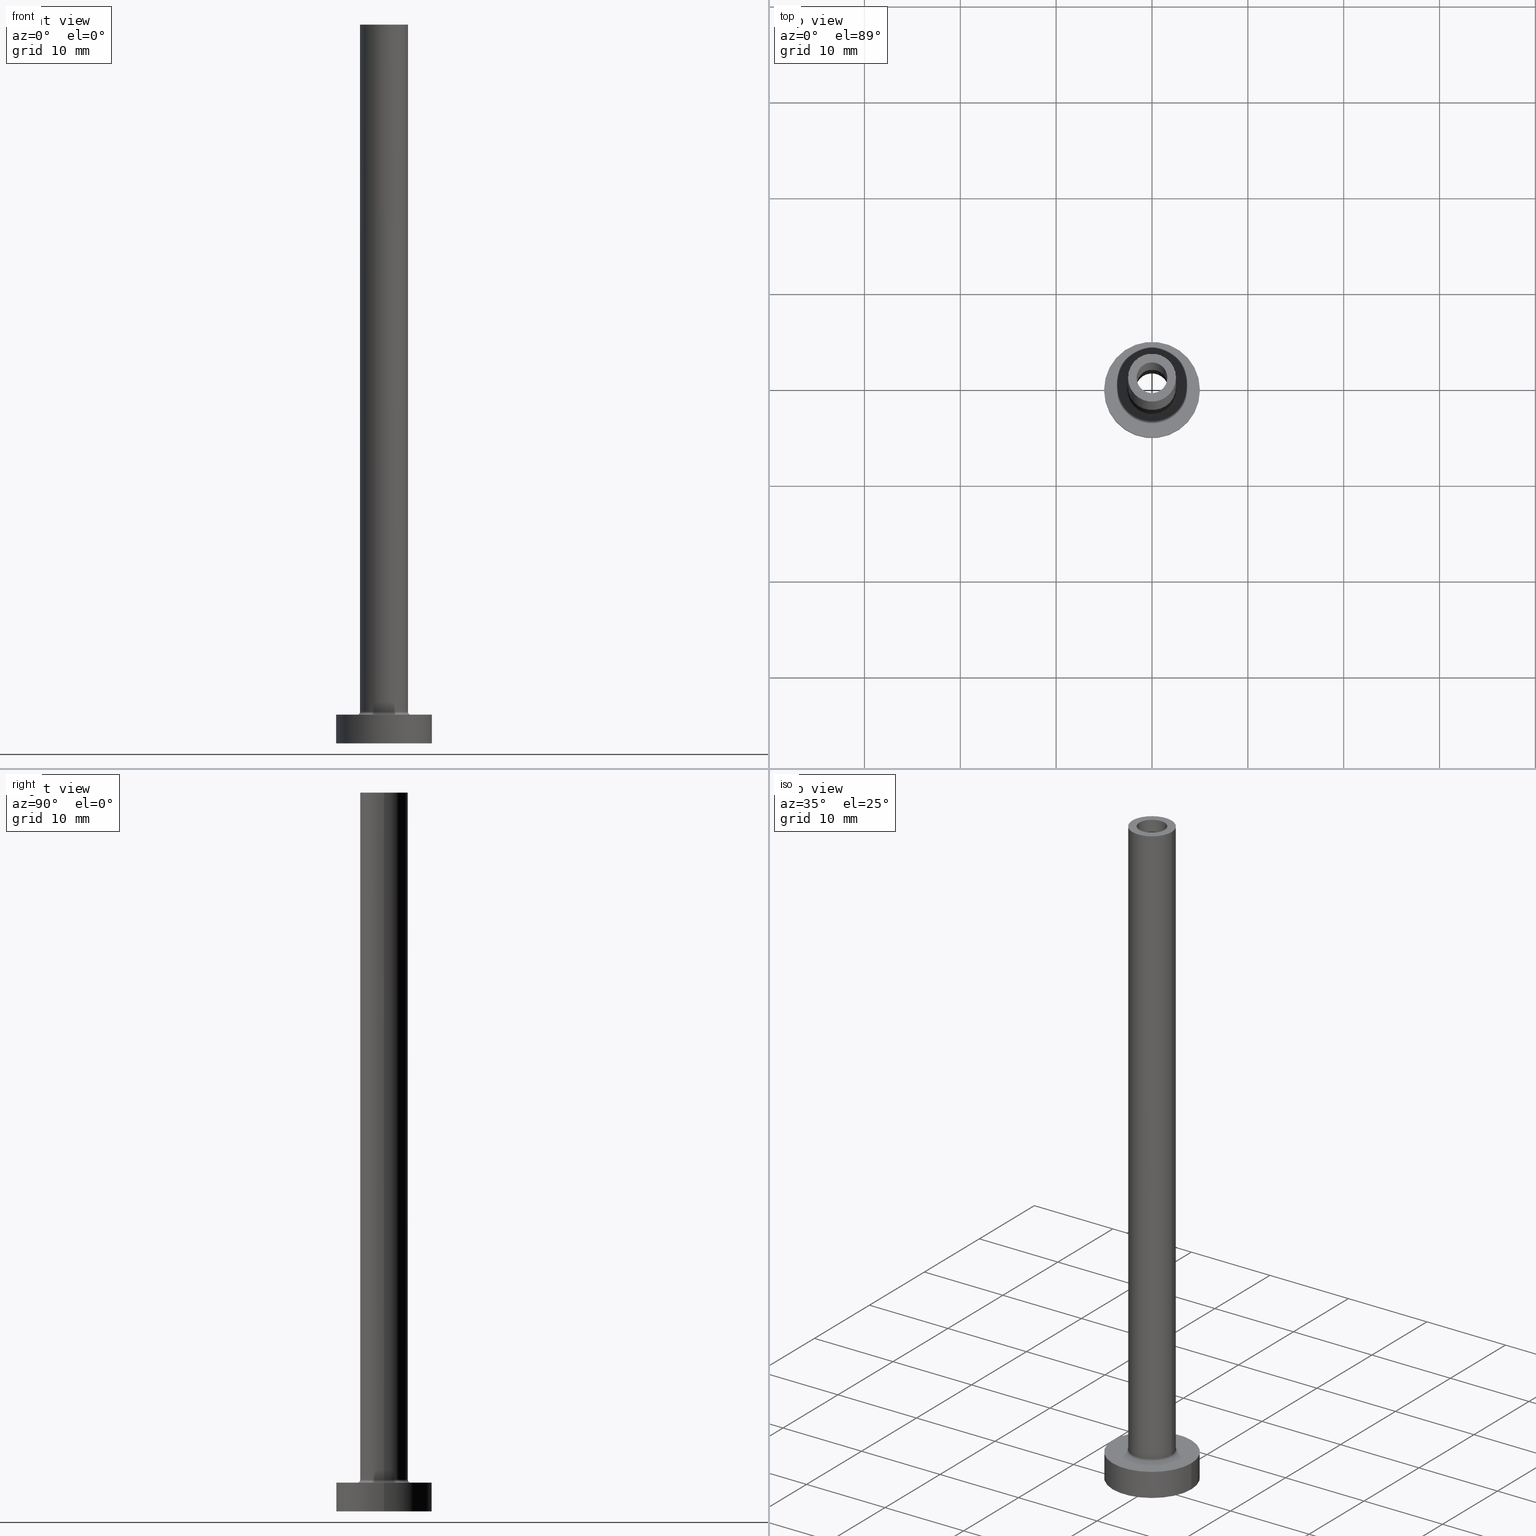
[diagram: canonical four-view strip — front | top / right | iso, engineering-drawing reading convention]
A machine part, canonical four-view strip (front | top / right | iso — engineering-drawing reading convention). The complete STEP part file that produces these views, byte-faithful:
ISO-10303-21;
HEADER;
FILE_DESCRIPTION (( 'STEP AP203' ),
    '1' );
FILE_NAME ('59d6.STEP',
    '2023-02-13T17:58:18',
    ( '' ),
    ( '' ),
    'SwSTEP 2.0',
    'SolidWorks 2019',
    '' );
FILE_SCHEMA (( 'CONFIG_CONTROL_DESIGN' ));
ENDSEC;

DATA;
#1 = DIRECTION ( 'NONE',  ( -0.000000000000000000, -0.000000000000000000, -1.000000000000000000 ) ) ;
#2 = ORIENTED_EDGE ( 'NONE', *, *, #396, .T. ) ;
#3 = AXIS2_PLACEMENT_3D ( 'NONE', #136, #129, #415 ) ;
#4 = CC_DESIGN_SECURITY_CLASSIFICATION ( #345, ( #99 ) ) ;
#5 = CARTESIAN_POINT ( 'NONE',  ( 0.000000000000000000, 0.000000000000000000, 3.000000000000000000 ) ) ;
#6 = AXIS2_PLACEMENT_3D ( 'NONE', #241, #185, #417 ) ;
#7 = EDGE_CURVE ( 'NONE', #86, #35, #331, .T. ) ;
#8 = CYLINDRICAL_SURFACE ( 'NONE', #449, 5.000000000000000000 ) ;
#9 = APPROVAL_ROLE ( '' ) ;
#10 = CIRCLE ( 'NONE', #191, 1.600000000000000089 ) ;
#11 = ORIENTED_EDGE ( 'NONE', *, *, #161, .F. ) ;
#12 = CIRCLE ( 'NONE', #30, 1.600000000000000089 ) ;
#13 = VERTEX_POINT ( 'NONE', #353 ) ;
#14 = AXIS2_PLACEMENT_3D ( 'NONE', #171, #165, #310 ) ;
#15 = ADVANCED_FACE ( 'NONE', ( #428 ), #389, .F. ) ;
#16 = CIRCLE ( 'NONE', #337, 5.000000000000000000 ) ;
#17 = APPROVAL_ROLE ( '' ) ;
#18 = FACE_BOUND ( 'NONE', #91, .T. ) ;
#19 = PERSON_AND_ORGANIZATION_ROLE ( 'creator' ) ;
#20 = EDGE_LOOP ( 'NONE', ( #11, #79, #107, #120 ) ) ;
#21 = FACE_OUTER_BOUND ( 'NONE', #216, .T. ) ;
#22 = COORDINATED_UNIVERSAL_TIME_OFFSET ( 1, 0, .AHEAD. ) ;
#23 = ADVANCED_FACE ( 'NONE', ( #247, #148 ), #238, .T. ) ;
#24 = AXIS2_PLACEMENT_3D ( 'NONE', #75, #318, #456 ) ;
#25 = ORIENTED_EDGE ( 'NONE', *, *, #298, .T. ) ;
#26 = CARTESIAN_POINT ( 'NONE',  ( 5.000000000000000000, 6.123233995736766282E-16, 3.000000000000000000 ) ) ;
#27 = FACE_OUTER_BOUND ( 'NONE', #33, .T. ) ;
#28 = CARTESIAN_POINT ( 'NONE',  ( 0.000000000000000000, 0.000000000000000000, 34.94974746830583001 ) ) ;
#29 = MECHANICAL_CONTEXT ( 'NONE', #339, 'mechanical' ) ;
#30 = AXIS2_PLACEMENT_3D ( 'NONE', #375, #262, #338 ) ;
#31 = VERTEX_POINT ( 'NONE', #43 ) ;
#32 = EDGE_CURVE ( 'NONE', #278, #142, #385, .T. ) ;
#33 = EDGE_LOOP ( 'NONE', ( #80, #41 ) ) ;
#34 = DATE_AND_TIME ( #361, #224 ) ;
#35 = VERTEX_POINT ( 'NONE', #140 ) ;
#36 = CARTESIAN_POINT ( 'NONE',  ( 1.750000000000000000, 2.143131898507867804E-16, 30.00000000000000000 ) ) ;
#37 = ORIENTED_EDGE ( 'NONE', *, *, #443, .F. ) ;
#38 = EDGE_CURVE ( 'NONE', #31, #358, #16, .T. ) ;
#39 = DIRECTION ( 'NONE',  ( 0.000000000000000000, 0.000000000000000000, -1.000000000000000000 ) ) ;
#40 = SECURITY_CLASSIFICATION_LEVEL ( 'unclassified' ) ;
#41 = ORIENTED_EDGE ( 'NONE', *, *, #319, .T. ) ;
#42 = TOROIDAL_SURFACE ( 'NONE', #131, 2.799999999999999822, 0.2999999999999999889 ) ;
#43 = CARTESIAN_POINT ( 'NONE',  ( 5.000000000000000000, 6.123233995736766282E-16, 3.000000000000000000 ) ) ;
#44 = COORDINATED_UNIVERSAL_TIME_OFFSET ( 1, 0, .AHEAD. ) ;
#45 = VERTEX_POINT ( 'NONE', #146 ) ;
#46 = PRODUCT_DEFINITION_SHAPE ( 'NONE', 'NONE',  #96 ) ;
#47 = CARTESIAN_POINT ( 'NONE',  ( 0.000000000000000000, 0.000000000000000000, 0.000000000000000000 ) ) ;
#48 = CIRCLE ( 'NONE', #322, 1.750000000000000000 ) ;
#49 = LINE ( 'NONE', #332, #300 ) ;
#50 = ORIENTED_EDGE ( 'NONE', *, *, #32, .T. ) ;
#51 = AXIS2_PLACEMENT_3D ( 'NONE', #369, #89, #250 ) ;
#52 = DIRECTION ( 'NONE',  ( 0.000000000000000000, 0.000000000000000000, 1.000000000000000000 ) ) ;
#53 = LINE ( 'NONE', #335, #404 ) ;
#54 = EDGE_CURVE ( 'NONE', #422, #311, #357, .T. ) ;
#55 = DATE_TIME_ROLE ( 'creation_date' ) ;
#56 = VECTOR ( 'NONE', #256, 1000.000000000000000 ) ;
#57 = CIRCLE ( 'NONE', #177, 2.799999999999999822 ) ;
#58 = DATE_AND_TIME ( #125, #291 ) ;
#59 = ORIENTED_EDGE ( 'NONE', *, *, #374, .T. ) ;
#60 = DIRECTION ( 'NONE',  ( -0.000000000000000000, -0.000000000000000000, -1.000000000000000000 ) ) ;
#61 = PERSON_AND_ORGANIZATION_ROLE ( 'design_owner' ) ;
#62 = ADVANCED_FACE ( 'NONE', ( #360 ), #110, .T. ) ;
#63 = DIRECTION ( 'NONE',  ( -1.000000000000000000, 0.000000000000000000, 0.000000000000000000 ) ) ;
#64 = CARTESIAN_POINT ( 'NONE',  ( 2.500000000000000000, 3.061616997868383141E-16, 3.299999999999997158 ) ) ;
#65 = DIRECTION ( 'NONE',  ( 1.000000000000000000, 0.000000000000000000, 0.000000000000000000 ) ) ;
#66 =( NAMED_UNIT ( * ) SI_UNIT ( $, .STERADIAN. ) SOLID_ANGLE_UNIT ( ) );
#67 = APPROVAL ( #372, 'NEUR�EN�' ) ;
#68 = CARTESIAN_POINT ( 'NONE',  ( -1.750000000000000000, 0.000000000000000000, 0.000000000000000000 ) ) ;
#69 = ORIENTED_EDGE ( 'NONE', *, *, #368, .F. ) ;
#70 = CIRCLE ( 'NONE', #344, 1.750000000000000000 ) ;
#71 = ORIENTED_EDGE ( 'NONE', *, *, #154, .F. ) ;
#72 = CC_DESIGN_APPROVAL ( #259, ( #345 ) ) ;
#73 = VERTEX_POINT ( 'NONE', #397 ) ;
#74 = ORIENTED_EDGE ( 'NONE', *, *, #83, .T. ) ;
#75 = CARTESIAN_POINT ( 'NONE',  ( 0.000000000000000000, 0.000000000000000000, 0.000000000000000000 ) ) ;
#76 = CC_DESIGN_PERSON_AND_ORGANIZATION_ASSIGNMENT ( #258, #126, ( #96 ) ) ;
#77 = DIRECTION ( 'NONE',  ( -1.000000000000000000, 0.000000000000000000, 0.000000000000000000 ) ) ;
#78 = CALENDAR_DATE ( 2023, 13, 2 ) ;
#79 = ORIENTED_EDGE ( 'NONE', *, *, #365, .T. ) ;
#80 = ORIENTED_EDGE ( 'NONE', *, *, #88, .T. ) ;
#81 = ORIENTED_EDGE ( 'NONE', *, *, #312, .F. ) ;
#82 = DIRECTION ( 'NONE',  ( 0.000000000000000000, 0.000000000000000000, 1.000000000000000000 ) ) ;
#83 = EDGE_CURVE ( 'NONE', #358, #31, #193, .T. ) ;
#84 = EDGE_LOOP ( 'NONE', ( #252, #2, #341, #363 ) ) ;
#85 = CARTESIAN_POINT ( 'NONE',  ( 0.000000000000000000, 0.000000000000000000, 3.299999999999997158 ) ) ;
#86 = VERTEX_POINT ( 'NONE', #364 ) ;
#87 = DIRECTION ( 'NONE',  ( 1.000000000000000000, 0.000000000000000000, 0.000000000000000000 ) ) ;
#88 = EDGE_CURVE ( 'NONE', #422, #45, #265, .T. ) ;
#89 = DIRECTION ( 'NONE',  ( 0.000000000000000000, 0.000000000000000000, 1.000000000000000000 ) ) ;
#90 = PERSON_AND_ORGANIZATION ( #287, #174 ) ;
#91 = EDGE_LOOP ( 'NONE', ( #455, #158 ) ) ;
#92 = CC_DESIGN_APPROVAL ( #67, ( #96 ) ) ;
#93 = DIRECTION ( 'NONE',  ( 1.000000000000000000, 0.000000000000000000, 0.000000000000000000 ) ) ;
#94 = TOROIDAL_SURFACE ( 'NONE', #326, 2.799999999999999822, 0.2999999999999999889 ) ;
#95 = DIRECTION ( 'NONE',  ( 0.000000000000000000, 0.000000000000000000, -1.000000000000000000 ) ) ;
#96 = PRODUCT_DEFINITION ( 'NEZN�M�', '', #99, #381 ) ;
#97 = CYLINDRICAL_SURFACE ( 'NONE', #199, 5.000000000000000000 ) ;
#98 = CARTESIAN_POINT ( 'NONE',  ( 2.799999999999999822, 0.000000000000000000, 2.999999999999998668 ) ) ;
#99 = PRODUCT_DEFINITION_FORMATION_WITH_SPECIFIED_SOURCE ( 'LIBOVOLN�', '', #281, .NOT_KNOWN. ) ;
#100 = CARTESIAN_POINT ( 'NONE',  ( 0.000000000000000000, 0.000000000000000000, 75.00000000000000000 ) ) ;
#101 = ORIENTED_EDGE ( 'NONE', *, *, #436, .T. ) ;
#102 = FACE_BOUND ( 'NONE', #190, .T. ) ;
#103 = CARTESIAN_POINT ( 'NONE',  ( 0.000000000000000000, 0.000000000000000000, 3.000000000000000000 ) ) ;
#104 = ORIENTED_EDGE ( 'NONE', *, *, #443, .T. ) ;
#105 = FACE_OUTER_BOUND ( 'NONE', #433, .T. ) ;
#106 = AXIS2_PLACEMENT_3D ( 'NONE', #373, #264, #196 ) ;
#107 = ORIENTED_EDGE ( 'NONE', *, *, #32, .F. ) ;
#108 = DIRECTION ( 'NONE',  ( 0.000000000000000000, 0.000000000000000000, -1.000000000000000000 ) ) ;
#109 = AXIS2_PLACEMENT_3D ( 'NONE', #85, #52, #370 ) ;
#110 = CYLINDRICAL_SURFACE ( 'NONE', #118, 2.500000000000000000 ) ;
#111 = DIRECTION ( 'NONE',  ( -1.000000000000000000, 0.000000000000000000, 0.000000000000000000 ) ) ;
#112 = DIRECTION ( 'NONE',  ( 1.000000000000000000, 0.000000000000000000, -0.000000000000000000 ) ) ;
#113 = ORIENTED_EDGE ( 'NONE', *, *, #421, .F. ) ;
#114 = DIRECTION ( 'NONE',  ( 0.000000000000000000, 0.000000000000000000, 1.000000000000000000 ) ) ;
#115 = CIRCLE ( 'NONE', #423, 1.750000000000000000 ) ;
#116 = LOCAL_TIME ( 18, 58, 18.00000000000000000, #164 ) ;
#117 = EDGE_CURVE ( 'NONE', #142, #278, #57, .T. ) ;
#118 = AXIS2_PLACEMENT_3D ( 'NONE', #217, #206, #273 ) ;
#119 = COORDINATED_UNIVERSAL_TIME_OFFSET ( 1, 0, .AHEAD. ) ;
#120 = ORIENTED_EDGE ( 'NONE', *, *, #334, .F. ) ;
#121 = CARTESIAN_POINT ( 'NONE',  ( -1.750000000000000000, 0.000000000000000000, 34.94974746830583001 ) ) ;
#122 = ADVANCED_FACE ( 'NONE', ( #105 ), #94, .F. ) ;
#123 = AXIS2_PLACEMENT_3D ( 'NONE', #379, #60, #309 ) ;
#124 = CLOSED_SHELL ( 'NONE', ( #15, #377, #135, #253, #272, #356, #23, #410, #62, #208, #122, #402, #226, #214 ) ) ;
#125 = CALENDAR_DATE ( 2023, 13, 2 ) ;
#126 = PERSON_AND_ORGANIZATION_ROLE ( 'creator' ) ;
#127 = EDGE_LOOP ( 'NONE', ( #74, #152 ) ) ;
#128 = VECTOR ( 'NONE', #313, 1000.000000000000000 ) ;
#129 = DIRECTION ( 'NONE',  ( 0.000000000000000000, 0.000000000000000000, 1.000000000000000000 ) ) ;
#130 = EDGE_CURVE ( 'NONE', #45, #290, #53, .T. ) ;
#131 = AXIS2_PLACEMENT_3D ( 'NONE', #403, #441, #87 ) ;
#132 = AXIS2_PLACEMENT_3D ( 'NONE', #386, #39, #77 ) ;
#133 = FACE_OUTER_BOUND ( 'NONE', #84, .T. ) ;
#134 = DIRECTION ( 'NONE',  ( -1.000000000000000000, 0.000000000000000000, 0.000000000000000000 ) ) ;
#135 = ADVANCED_FACE ( 'NONE', ( #188 ), #42, .F. ) ;
#136 = CARTESIAN_POINT ( 'NONE',  ( 0.000000000000000000, 0.000000000000000000, 30.00000000000000000 ) ) ;
#137 = AXIS2_PLACEMENT_3D ( 'NONE', #166, #223, #271 ) ;
#138 = EDGE_LOOP ( 'NONE', ( #113, #220, #187, #101 ) ) ;
#139 =( NAMED_UNIT ( * ) PLANE_ANGLE_UNIT ( ) SI_UNIT ( $, .RADIAN. ) );
#140 = CARTESIAN_POINT ( 'NONE',  ( -1.600000000000000089, 0.000000000000000000, 75.00000000000000000 ) ) ;
#141 = COORDINATED_UNIVERSAL_TIME_OFFSET ( 1, 0, .AHEAD. ) ;
#142 = VERTEX_POINT ( 'NONE', #222 ) ;
#143 = CARTESIAN_POINT ( 'NONE',  ( 0.000000000000000000, 0.000000000000000000, 0.000000000000000000 ) ) ;
#144 = EDGE_CURVE ( 'NONE', #358, #179, #49, .T. ) ;
#145 = UNCERTAINTY_MEASURE_WITH_UNIT (LENGTH_MEASURE( 1.000000000000000082E-05 ), #237, 'distance_accuracy_value', 'NONE');
#146 = CARTESIAN_POINT ( 'NONE',  ( 2.500000000000000000, 3.061616997868383141E-16, 75.00000000000000000 ) ) ;
#147 = ORIENTED_EDGE ( 'NONE', *, *, #117, .T. ) ;
#148 = FACE_OUTER_BOUND ( 'NONE', #127, .T. ) ;
#149 = VECTOR ( 'NONE', #212, 1000.000000000000000 ) ;
#150 = DIRECTION ( 'NONE',  ( -0.000000000000000000, -0.000000000000000000, -1.000000000000000000 ) ) ;
#151 = DIRECTION ( 'NONE',  ( 1.000000000000000000, 0.000000000000000000, 0.000000000000000000 ) ) ;
#152 = ORIENTED_EDGE ( 'NONE', *, *, #38, .T. ) ;
#153 = DIRECTION ( 'NONE',  ( -1.000000000000000000, 0.000000000000000000, 0.000000000000000000 ) ) ;
#154 = EDGE_CURVE ( 'NONE', #290, #311, #209, .T. ) ;
#155 = LINE ( 'NONE', #434, #56 ) ;
#156 = DIRECTION ( 'NONE',  ( 1.000000000000000000, 0.000000000000000000, 0.000000000000000000 ) ) ;
#157 = PERSON_AND_ORGANIZATION_ROLE ( 'classification_officer' ) ;
#158 = ORIENTED_EDGE ( 'NONE', *, *, #234, .T. ) ;
#159 = DIRECTION ( 'NONE',  ( 0.000000000000000000, 0.000000000000000000, 1.000000000000000000 ) ) ;
#160 = MANIFOLD_SOLID_BREP ( 'Odebrat vysunut�m4', #124 ) ;
#161 = EDGE_CURVE ( 'NONE', #311, #290, #384, .T. ) ;
#162 = ORIENTED_EDGE ( 'NONE', *, *, #194, .F. ) ;
#163 = AXIS2_PLACEMENT_3D ( 'NONE', #266, #95, #63 ) ;
#164 = COORDINATED_UNIVERSAL_TIME_OFFSET ( 1, 0, .AHEAD. ) ;
#165 = DIRECTION ( 'NONE',  ( 0.000000000000000000, 0.000000000000000000, 1.000000000000000000 ) ) ;
#166 = CARTESIAN_POINT ( 'NONE',  ( 0.000000000000000000, 0.000000000000000000, 0.000000000000000000 ) ) ;
#167 = EDGE_CURVE ( 'NONE', #73, #179, #426, .T. ) ;
#168 = FACE_OUTER_BOUND ( 'NONE', #349, .T. ) ;
#169 = AXIS2_PLACEMENT_3D ( 'NONE', #28, #108, #111 ) ;
#170 = VERTEX_POINT ( 'NONE', #297 ) ;
#171 = CARTESIAN_POINT ( 'NONE',  ( 0.000000000000000000, 0.000000000000000000, 75.00000000000000000 ) ) ;
#172 = EDGE_LOOP ( 'NONE', ( #37, #176 ) ) ;
#173 = CARTESIAN_POINT ( 'NONE',  ( 0.000000000000000000, 0.000000000000000000, 0.000000000000000000 ) ) ;
#174 = ORGANIZATION ( 'NEUR�EN�', 'NEUR�EN�', '' ) ;
#175 = PERSON_AND_ORGANIZATION ( #287, #174 ) ;
#176 = ORIENTED_EDGE ( 'NONE', *, *, #167, .F. ) ;
#177 = AXIS2_PLACEMENT_3D ( 'NONE', #103, #276, #420 ) ;
#178 = PERSON_AND_ORGANIZATION ( #287, #174 ) ;
#179 = VERTEX_POINT ( 'NONE', #327 ) ;
#180 = LINE ( 'NONE', #452, #205 ) ;
#181 = EDGE_CURVE ( 'NONE', #35, #86, #10, .T. ) ;
#182 = ORIENTED_EDGE ( 'NONE', *, *, #334, .T. ) ;
#183 = DIRECTION ( 'NONE',  ( 0.000000000000000000, 0.000000000000000000, 1.000000000000000000 ) ) ;
#184 = ORIENTED_EDGE ( 'NONE', *, *, #282, .F. ) ;
#185 = DIRECTION ( 'NONE',  ( 0.000000000000000000, 0.000000000000000000, 1.000000000000000000 ) ) ;
#186 = APPROVAL ( #260, 'NEUR�EN�' ) ;
#187 = ORIENTED_EDGE ( 'NONE', *, *, #368, .T. ) ;
#188 = FACE_OUTER_BOUND ( 'NONE', #20, .T. ) ;
#189 = CARTESIAN_POINT ( 'NONE',  ( 0.000000000000000000, 0.000000000000000000, 34.94974746830583001 ) ) ;
#190 = EDGE_LOOP ( 'NONE', ( #394, #162 ) ) ;
#191 = AXIS2_PLACEMENT_3D ( 'NONE', #438, #82, #435 ) ;
#192 = CARTESIAN_POINT ( 'NONE',  ( 0.000000000000000000, 0.000000000000000000, 30.00000000000000000 ) ) ;
#193 = CIRCLE ( 'NONE', #405, 5.000000000000000000 ) ;
#194 = EDGE_CURVE ( 'NONE', #13, #450, #359, .T. ) ;
#195 = ORIENTED_EDGE ( 'NONE', *, *, #54, .T. ) ;
#196 = DIRECTION ( 'NONE',  ( 0.000000000000000000, 0.000000000000000000, -1.000000000000000000 ) ) ;
#197 = DIRECTION ( 'NONE',  ( 1.000000000000000000, 0.000000000000000000, -0.000000000000000000 ) ) ;
#198 = EDGE_CURVE ( 'NONE', #413, #170, #70, .T. ) ;
#199 = AXIS2_PLACEMENT_3D ( 'NONE', #270, #409, #134 ) ;
#200 = CARTESIAN_POINT ( 'NONE',  ( 1.600000000000000089, 1.959434878635764737E-16, 75.00000000000000000 ) ) ;
#201 = LOCAL_TIME ( 18, 58, 18.00000000000000000, #44 ) ;
#202 = CARTESIAN_POINT ( 'NONE',  ( -2.500000000000000000, 0.000000000000000000, 3.299999999999997158 ) ) ;
#203 = ORIENTED_EDGE ( 'NONE', *, *, #181, .F. ) ;
#204 = ADVANCED_BREP_SHAPE_REPRESENTATION ( '59d6', ( #160, #137 ), #371 ) ;
#205 = VECTOR ( 'NONE', #383, 1000.000000000000000 ) ;
#206 = DIRECTION ( 'NONE',  ( -0.000000000000000000, -0.000000000000000000, -1.000000000000000000 ) ) ;
#207 = ORIENTED_EDGE ( 'NONE', *, *, #319, .F. ) ;
#208 = ADVANCED_FACE ( 'NONE', ( #307, #27 ), #446, .T. ) ;
#209 = CIRCLE ( 'NONE', #51, 2.500000000000000000 ) ;
#210 = CARTESIAN_POINT ( 'NONE',  ( 0.000000000000000000, 0.000000000000000000, 3.000000000000000000 ) ) ;
#211 = DIRECTION ( 'NONE',  ( 1.000000000000000000, 0.000000000000000000, 0.000000000000000000 ) ) ;
#212 = DIRECTION ( 'NONE',  ( -0.000000000000000000, -0.000000000000000000, -1.000000000000000000 ) ) ;
#213 = ORIENTED_EDGE ( 'NONE', *, *, #194, .T. ) ;
#214 = ADVANCED_FACE ( 'NONE', ( #303 ), #346, .F. ) ;
#215 = CARTESIAN_POINT ( 'NONE',  ( 0.000000000000000000, 0.000000000000000000, 3.000000000000000000 ) ) ;
#216 = EDGE_LOOP ( 'NONE', ( #207, #418, #362, #315 ) ) ;
#217 = CARTESIAN_POINT ( 'NONE',  ( 0.000000000000000000, 0.000000000000000000, 75.00000000000000000 ) ) ;
#218 = DIRECTION ( 'NONE',  ( -0.000000000000000000, -0.000000000000000000, -1.000000000000000000 ) ) ;
#219 = CYLINDRICAL_SURFACE ( 'NONE', #299, 1.750000000000000000 ) ;
#220 = ORIENTED_EDGE ( 'NONE', *, *, #198, .T. ) ;
#221 = CC_DESIGN_APPROVAL ( #186, ( #99 ) ) ;
#222 = CARTESIAN_POINT ( 'NONE',  ( -2.799999999999999822, 3.429011037612589276E-16, 2.999999999999998668 ) ) ;
#223 = DIRECTION ( 'NONE',  ( 0.000000000000000000, 0.000000000000000000, 1.000000000000000000 ) ) ;
#224 = LOCAL_TIME ( 18, 58, 18.00000000000000000, #119 ) ;
#225 = CARTESIAN_POINT ( 'NONE',  ( -1.600000000000000089, 0.000000000000000000, 30.00000000000000000 ) ) ;
#226 = ADVANCED_FACE ( 'NONE', ( #18, #447 ), #411, .F. ) ;
#227 = LINE ( 'NONE', #26, #128 ) ;
#228 = DIRECTION ( 'NONE',  ( 0.000000000000000000, 0.000000000000000000, 1.000000000000000000 ) ) ;
#229 = ORIENTED_EDGE ( 'NONE', *, *, #144, .T. ) ;
#230 = AXIS2_PLACEMENT_3D ( 'NONE', #352, #316, #458 ) ;
#231 = DIRECTION ( 'NONE',  ( 0.000000000000000000, 0.000000000000000000, -1.000000000000000000 ) ) ;
#232 = PLANE ( 'NONE',  #24 ) ;
#233 = DIRECTION ( 'NONE',  ( 0.000000000000000000, 0.000000000000000000, 1.000000000000000000 ) ) ;
#234 = EDGE_CURVE ( 'NONE', #416, #328, #12, .T. ) ;
#235 = CALENDAR_DATE ( 2023, 13, 2 ) ;
#236 = EDGE_LOOP ( 'NONE', ( #246, #25, #81, #391 ) ) ;
#237 =( LENGTH_UNIT ( ) NAMED_UNIT ( * ) SI_UNIT ( .MILLI., .METRE. ) );
#238 = PLANE ( 'NONE',  #440 ) ;
#239 = PERSON_AND_ORGANIZATION ( #287, #174 ) ;
#240 = ORIENTED_EDGE ( 'NONE', *, *, #83, .F. ) ;
#241 = CARTESIAN_POINT ( 'NONE',  ( 0.000000000000000000, 0.000000000000000000, 75.00000000000000000 ) ) ;
#242 = APPLICATION_CONTEXT ( 'configuration controlled 3d designs of mechanical parts and assemblies' ) ;
#243 = EDGE_LOOP ( 'NONE', ( #308, #429, #59, #388 ) ) ;
#244 = CC_DESIGN_PERSON_AND_ORGANIZATION_ASSIGNMENT ( #90, #19, ( #99 ) ) ;
#245 = CARTESIAN_POINT ( 'NONE',  ( -2.500000000000000000, 0.000000000000000000, 75.00000000000000000 ) ) ;
#246 = ORIENTED_EDGE ( 'NONE', *, *, #181, .T. ) ;
#247 = FACE_BOUND ( 'NONE', #304, .T. ) ;
#248 = CIRCLE ( 'NONE', #230, 0.2999999999999999334 ) ;
#249 = VECTOR ( 'NONE', #231, 1000.000000000000000 ) ;
#250 = DIRECTION ( 'NONE',  ( 1.000000000000000000, 0.000000000000000000, 0.000000000000000000 ) ) ;
#251 = APPROVAL_DATE_TIME ( #324, #259 ) ;
#252 = ORIENTED_EDGE ( 'NONE', *, *, #38, .F. ) ;
#253 = ADVANCED_FACE ( 'NONE', ( #21 ), #378, .T. ) ;
#254 = DIRECTION ( 'NONE',  ( 0.000000000000000000, 0.000000000000000000, 1.000000000000000000 ) ) ;
#255 = CIRCLE ( 'NONE', #439, 2.500000000000000000 ) ;
#256 = DIRECTION ( 'NONE',  ( 0.000000000000000000, 0.000000000000000000, -1.000000000000000000 ) ) ;
#257 = AXIS2_PLACEMENT_3D ( 'NONE', #289, #431, #459 ) ;
#258 = PERSON_AND_ORGANIZATION ( #287, #174 ) ;
#259 = APPROVAL ( #387, 'NEUR�EN�' ) ;
#260 = APPROVAL_STATUS ( 'not_yet_approved' ) ;
#261 = EDGE_LOOP ( 'NONE', ( #184, #293 ) ) ;
#262 = DIRECTION ( 'NONE',  ( 0.000000000000000000, 0.000000000000000000, 1.000000000000000000 ) ) ;
#263 = APPROVAL_ROLE ( '' ) ;
#264 = DIRECTION ( 'NONE',  ( 0.000000000000000000, -1.000000000000000000, 0.000000000000000000 ) ) ;
#265 = CIRCLE ( 'NONE', #6, 2.500000000000000000 ) ;
#266 = CARTESIAN_POINT ( 'NONE',  ( 0.000000000000000000, 0.000000000000000000, 75.00000000000000000 ) ) ;
#267 = CARTESIAN_POINT ( 'NONE',  ( 0.000000000000000000, 0.000000000000000000, 30.00000000000000000 ) ) ;
#268 = FACE_OUTER_BOUND ( 'NONE', #138, .T. ) ;
#269 = AXIS2_PLACEMENT_3D ( 'NONE', #173, #380, #211 ) ;
#270 = CARTESIAN_POINT ( 'NONE',  ( 0.000000000000000000, 0.000000000000000000, 3.000000000000000000 ) ) ;
#271 = DIRECTION ( 'NONE',  ( 1.000000000000000000, 0.000000000000000000, 0.000000000000000000 ) ) ;
#272 = ADVANCED_FACE ( 'NONE', ( #133 ), #97, .T. ) ;
#273 = DIRECTION ( 'NONE',  ( -1.000000000000000000, 0.000000000000000000, 0.000000000000000000 ) ) ;
#274 = APPROVAL_DATE_TIME ( #58, #67 ) ;
#275 = ORIENTED_EDGE ( 'NONE', *, *, #130, .F. ) ;
#276 = DIRECTION ( 'NONE',  ( -0.000000000000000000, -0.000000000000000000, -1.000000000000000000 ) ) ;
#277 = PERSON_AND_ORGANIZATION ( #287, #174 ) ;
#278 = VERTEX_POINT ( 'NONE', #98 ) ;
#279 = DIRECTION ( 'NONE',  ( 1.000000000000000000, 0.000000000000000000, 0.000000000000000000 ) ) ;
#280 = AXIS2_PLACEMENT_3D ( 'NONE', #47, #330, #305 ) ;
#281 = PRODUCT ( '59d6', '59d6', '', ( #29 ) ) ;
#282 = EDGE_CURVE ( 'NONE', #170, #413, #48, .T. ) ;
#283 = AXIS2_PLACEMENT_3D ( 'NONE', #210, #1, #284 ) ;
#284 = DIRECTION ( 'NONE',  ( 1.000000000000000000, 0.000000000000000000, 0.000000000000000000 ) ) ;
#285 = PERSON_AND_ORGANIZATION_ROLE ( 'design_supplier' ) ;
#286 = EDGE_LOOP ( 'NONE', ( #203, #427 ) ) ;
#287 = PERSON ( 'NEUR�EN�', 'NEUR�EN�', 'NEUR�EN�', ('NEUR�EN�'), ('NEUR�EN�'), ('NEUR�EN�') ) ;
#288 = CARTESIAN_POINT ( 'NONE',  ( -5.000000000000000000, 0.000000000000000000, 3.000000000000000000 ) ) ;
#289 = CARTESIAN_POINT ( 'NONE',  ( 0.000000000000000000, 0.000000000000000000, 75.00000000000000000 ) ) ;
#290 = VERTEX_POINT ( 'NONE', #64 ) ;
#291 = LOCAL_TIME ( 18, 58, 18.00000000000000000, #141 ) ;
#292 = APPROVAL_PERSON_ORGANIZATION ( #239, #259, #9 ) ;
#293 = ORIENTED_EDGE ( 'NONE', *, *, #198, .F. ) ;
#294 = CC_DESIGN_DATE_AND_TIME_ASSIGNMENT ( #34, #390, ( #345 ) ) ;
#295 = DIRECTION ( 'NONE',  ( 1.000000000000000000, 0.000000000000000000, 0.000000000000000000 ) ) ;
#296 = AXIS2_PLACEMENT_3D ( 'NONE', #333, #159, #295 ) ;
#297 = CARTESIAN_POINT ( 'NONE',  ( -1.750000000000000000, 0.000000000000000000, 30.00000000000000000 ) ) ;
#298 = EDGE_CURVE ( 'NONE', #86, #416, #347, .T. ) ;
#299 = AXIS2_PLACEMENT_3D ( 'NONE', #189, #406, #395 ) ;
#300 = VECTOR ( 'NONE', #408, 1000.000000000000000 ) ;
#301 = LINE ( 'NONE', #121, #367 ) ;
#302 = CALENDAR_DATE ( 2023, 13, 2 ) ;
#303 = FACE_OUTER_BOUND ( 'NONE', #243, .T. ) ;
#304 = EDGE_LOOP ( 'NONE', ( #50, #147 ) ) ;
#305 = DIRECTION ( 'NONE',  ( 1.000000000000000000, 0.000000000000000000, 0.000000000000000000 ) ) ;
#306 = CIRCLE ( 'NONE', #3, 1.600000000000000089 ) ;
#307 = FACE_BOUND ( 'NONE', #286, .T. ) ;
#308 = ORIENTED_EDGE ( 'NONE', *, *, #298, .F. ) ;
#309 = DIRECTION ( 'NONE',  ( -1.000000000000000000, 0.000000000000000000, 0.000000000000000000 ) ) ;
#310 = DIRECTION ( 'NONE',  ( 1.000000000000000000, 0.000000000000000000, -0.000000000000000000 ) ) ;
#311 = VERTEX_POINT ( 'NONE', #202 ) ;
#312 = EDGE_CURVE ( 'NONE', #328, #416, #306, .T. ) ;
#313 = DIRECTION ( 'NONE',  ( -0.000000000000000000, -0.000000000000000000, -1.000000000000000000 ) ) ;
#314 = APPLICATION_PROTOCOL_DEFINITION ( 'international standard', 'config_control_design', 1994, #242 ) ;
#315 = ORIENTED_EDGE ( 'NONE', *, *, #54, .F. ) ;
#316 = DIRECTION ( 'NONE',  ( 1.224646799147353207E-16, 1.000000000000000000, -0.000000000000000000 ) ) ;
#317 = ORIENTED_EDGE ( 'NONE', *, *, #365, .F. ) ;
#318 = DIRECTION ( 'NONE',  ( 0.000000000000000000, 0.000000000000000000, 1.000000000000000000 ) ) ;
#319 = EDGE_CURVE ( 'NONE', #45, #422, #255, .T. ) ;
#320 = ORIENTED_EDGE ( 'NONE', *, *, #282, .T. ) ;
#321 = FACE_OUTER_BOUND ( 'NONE', #172, .T. ) ;
#322 = AXIS2_PLACEMENT_3D ( 'NONE', #448, #228, #65 ) ;
#323 = DIRECTION ( 'NONE',  ( 1.000000000000000000, 0.000000000000000000, 0.000000000000000000 ) ) ;
#324 = DATE_AND_TIME ( #78, #201 ) ;
#325 = EDGE_LOOP ( 'NONE', ( #320, #382, #213, #69 ) ) ;
#326 = AXIS2_PLACEMENT_3D ( 'NONE', #366, #254, #156 ) ;
#327 = CARTESIAN_POINT ( 'NONE',  ( -5.000000000000000000, 0.000000000000000000, 0.000000000000000000 ) ) ;
#328 = VERTEX_POINT ( 'NONE', #225 ) ;
#329 = CC_DESIGN_PERSON_AND_ORGANIZATION_ASSIGNMENT ( #178, #285, ( #99 ) ) ;
#330 = DIRECTION ( 'NONE',  ( -0.000000000000000000, -0.000000000000000000, -1.000000000000000000 ) ) ;
#331 = CIRCLE ( 'NONE', #257, 1.600000000000000089 ) ;
#332 = CARTESIAN_POINT ( 'NONE',  ( -5.000000000000000000, 0.000000000000000000, 3.000000000000000000 ) ) ;
#333 = CARTESIAN_POINT ( 'NONE',  ( 0.000000000000000000, 0.000000000000000000, 0.000000000000000000 ) ) ;
#334 = EDGE_CURVE ( 'NONE', #290, #278, #451, .T. ) ;
#335 = CARTESIAN_POINT ( 'NONE',  ( 2.500000000000000000, 3.061616997868383141E-16, 75.00000000000000000 ) ) ;
#336 = PERSON_AND_ORGANIZATION ( #287, #174 ) ;
#337 = AXIS2_PLACEMENT_3D ( 'NONE', #393, #114, #151 ) ;
#338 = DIRECTION ( 'NONE',  ( 1.000000000000000000, 0.000000000000000000, 0.000000000000000000 ) ) ;
#339 = APPLICATION_CONTEXT ( 'configuration controlled 3d designs of mechanical parts and assemblies' ) ;
#340 = DATE_AND_TIME ( #302, #116 ) ;
#341 = ORIENTED_EDGE ( 'NONE', *, *, #167, .T. ) ;
#342 = DIRECTION ( 'NONE',  ( 1.000000000000000000, 0.000000000000000000, 0.000000000000000000 ) ) ;
#343 = CC_DESIGN_PERSON_AND_ORGANIZATION_ASSIGNMENT ( #277, #157, ( #345 ) ) ;
#344 = AXIS2_PLACEMENT_3D ( 'NONE', #192, #444, #342 ) ;
#345 = SECURITY_CLASSIFICATION ( '', '', #40 ) ;
#346 = CYLINDRICAL_SURFACE ( 'NONE', #163, 1.600000000000000089 ) ;
#347 = LINE ( 'NONE', #200, #249 ) ;
#348 = CC_DESIGN_DATE_AND_TIME_ASSIGNMENT ( #407, #55, ( #96 ) ) ;
#349 = EDGE_LOOP ( 'NONE', ( #399, #240, #229, #104 ) ) ;
#350 = CARTESIAN_POINT ( 'NONE',  ( -2.500000000000000000, 0.000000000000000000, 75.00000000000000000 ) ) ;
#351 = LOCAL_TIME ( 18, 58, 18.00000000000000000, #22 ) ;
#352 = CARTESIAN_POINT ( 'NONE',  ( -2.799999999999999822, 3.429011037612588783E-16, 3.299999999999997158 ) ) ;
#353 = CARTESIAN_POINT ( 'NONE',  ( 1.750000000000000000, 2.143131898507867804E-16, 0.000000000000000000 ) ) ;
#354 = EDGE_LOOP ( 'NONE', ( #275, #401, #195, #445 ) ) ;
#355 = APPLICATION_PROTOCOL_DEFINITION ( 'international standard', 'config_control_design', 1994, #339 ) ;
#356 = ADVANCED_FACE ( 'NONE', ( #168 ), #8, .T. ) ;
#357 = LINE ( 'NONE', #245, #149 ) ;
#358 = VERTEX_POINT ( 'NONE', #288 ) ;
#359 = CIRCLE ( 'NONE', #280, 1.750000000000000000 ) ;
#360 = FACE_OUTER_BOUND ( 'NONE', #354, .T. ) ;
#361 = CALENDAR_DATE ( 2023, 13, 2 ) ;
#362 = ORIENTED_EDGE ( 'NONE', *, *, #154, .T. ) ;
#363 = ORIENTED_EDGE ( 'NONE', *, *, #144, .F. ) ;
#364 = CARTESIAN_POINT ( 'NONE',  ( 1.600000000000000089, 1.959434878635764737E-16, 75.00000000000000000 ) ) ;
#365 = EDGE_CURVE ( 'NONE', #311, #142, #248, .T. ) ;
#366 = CARTESIAN_POINT ( 'NONE',  ( 0.000000000000000000, 0.000000000000000000, 3.299999999999997158 ) ) ;
#367 = VECTOR ( 'NONE', #437, 1000.000000000000000 ) ;
#368 = EDGE_CURVE ( 'NONE', #170, #450, #301, .T. ) ;
#369 = CARTESIAN_POINT ( 'NONE',  ( 0.000000000000000000, 0.000000000000000000, 3.299999999999997158 ) ) ;
#370 = DIRECTION ( 'NONE',  ( 1.000000000000000000, 0.000000000000000000, 0.000000000000000000 ) ) ;
#371 =( GEOMETRIC_REPRESENTATION_CONTEXT ( 3 ) GLOBAL_UNCERTAINTY_ASSIGNED_CONTEXT ( ( #145 ) ) GLOBAL_UNIT_ASSIGNED_CONTEXT ( ( #237, #139, #66 ) ) REPRESENTATION_CONTEXT ( 'NONE', 'WORKASPACE' ) );
#372 = APPROVAL_STATUS ( 'not_yet_approved' ) ;
#373 = CARTESIAN_POINT ( 'NONE',  ( 2.799999999999999822, 0.000000000000000000, 3.299999999999997158 ) ) ;
#374 = EDGE_CURVE ( 'NONE', #35, #328, #155, .T. ) ;
#375 = CARTESIAN_POINT ( 'NONE',  ( 0.000000000000000000, 0.000000000000000000, 30.00000000000000000 ) ) ;
#376 = AXIS2_PLACEMENT_3D ( 'NONE', #267, #412, #197 ) ;
#377 = ADVANCED_FACE ( 'NONE', ( #400 ), #219, .F. ) ;
#378 = CYLINDRICAL_SURFACE ( 'NONE', #123, 2.500000000000000000 ) ;
#379 = CARTESIAN_POINT ( 'NONE',  ( 0.000000000000000000, 0.000000000000000000, 75.00000000000000000 ) ) ;
#380 = DIRECTION ( 'NONE',  ( 0.000000000000000000, 0.000000000000000000, 1.000000000000000000 ) ) ;
#381 = DESIGN_CONTEXT ( 'detailed design', #242, 'design' ) ;
#382 = ORIENTED_EDGE ( 'NONE', *, *, #421, .T. ) ;
#383 = DIRECTION ( 'NONE',  ( 0.000000000000000000, 0.000000000000000000, -1.000000000000000000 ) ) ;
#384 = CIRCLE ( 'NONE', #109, 2.500000000000000000 ) ;
#385 = CIRCLE ( 'NONE', #283, 2.799999999999999822 ) ;
#386 = CARTESIAN_POINT ( 'NONE',  ( 0.000000000000000000, 0.000000000000000000, 75.00000000000000000 ) ) ;
#387 = APPROVAL_STATUS ( 'not_yet_approved' ) ;
#388 = ORIENTED_EDGE ( 'NONE', *, *, #234, .F. ) ;
#389 = CYLINDRICAL_SURFACE ( 'NONE', #132, 1.600000000000000089 ) ;
#390 = DATE_TIME_ROLE ( 'classification_date' ) ;
#391 = ORIENTED_EDGE ( 'NONE', *, *, #374, .F. ) ;
#392 = CARTESIAN_POINT ( 'NONE',  ( 1.600000000000000089, 1.959434878635764737E-16, 30.00000000000000000 ) ) ;
#393 = CARTESIAN_POINT ( 'NONE',  ( 0.000000000000000000, 0.000000000000000000, 3.000000000000000000 ) ) ;
#394 = ORIENTED_EDGE ( 'NONE', *, *, #436, .F. ) ;
#395 = DIRECTION ( 'NONE',  ( -1.000000000000000000, 0.000000000000000000, 0.000000000000000000 ) ) ;
#396 = EDGE_CURVE ( 'NONE', #31, #73, #227, .T. ) ;
#397 = CARTESIAN_POINT ( 'NONE',  ( 5.000000000000000000, 6.123233995736766282E-16, 0.000000000000000000 ) ) ;
#398 = SHAPE_DEFINITION_REPRESENTATION ( #46, #204 ) ;
#399 = ORIENTED_EDGE ( 'NONE', *, *, #396, .F. ) ;
#400 = FACE_OUTER_BOUND ( 'NONE', #325, .T. ) ;
#401 = ORIENTED_EDGE ( 'NONE', *, *, #88, .F. ) ;
#402 = ADVANCED_FACE ( 'NONE', ( #268 ), #419, .F. ) ;
#403 = CARTESIAN_POINT ( 'NONE',  ( 0.000000000000000000, 0.000000000000000000, 3.299999999999997158 ) ) ;
#404 = VECTOR ( 'NONE', #218, 1000.000000000000000 ) ;
#405 = AXIS2_PLACEMENT_3D ( 'NONE', #425, #183, #323 ) ;
#406 = DIRECTION ( 'NONE',  ( 0.000000000000000000, 0.000000000000000000, -1.000000000000000000 ) ) ;
#407 = DATE_AND_TIME ( #235, #351 ) ;
#408 = DIRECTION ( 'NONE',  ( -0.000000000000000000, -0.000000000000000000, -1.000000000000000000 ) ) ;
#409 = DIRECTION ( 'NONE',  ( -0.000000000000000000, -0.000000000000000000, -1.000000000000000000 ) ) ;
#410 = ADVANCED_FACE ( 'NONE', ( #102, #321 ), #232, .F. ) ;
#411 = PLANE ( 'NONE',  #376 ) ;
#412 = DIRECTION ( 'NONE',  ( 0.000000000000000000, 0.000000000000000000, 1.000000000000000000 ) ) ;
#413 = VERTEX_POINT ( 'NONE', #36 ) ;
#414 = CIRCLE ( 'NONE', #269, 5.000000000000000000 ) ;
#415 = DIRECTION ( 'NONE',  ( 1.000000000000000000, 0.000000000000000000, 0.000000000000000000 ) ) ;
#416 = VERTEX_POINT ( 'NONE', #392 ) ;
#417 = DIRECTION ( 'NONE',  ( 1.000000000000000000, 0.000000000000000000, 0.000000000000000000 ) ) ;
#418 = ORIENTED_EDGE ( 'NONE', *, *, #130, .T. ) ;
#419 = CYLINDRICAL_SURFACE ( 'NONE', #169, 1.750000000000000000 ) ;
#420 = DIRECTION ( 'NONE',  ( 1.000000000000000000, 0.000000000000000000, 0.000000000000000000 ) ) ;
#421 = EDGE_CURVE ( 'NONE', #413, #13, #180, .T. ) ;
#422 = VERTEX_POINT ( 'NONE', #350 ) ;
#423 = AXIS2_PLACEMENT_3D ( 'NONE', #143, #461, #279 ) ;
#424 = APPROVAL_PERSON_ORGANIZATION ( #336, #186, #17 ) ;
#425 = CARTESIAN_POINT ( 'NONE',  ( 0.000000000000000000, 0.000000000000000000, 3.000000000000000000 ) ) ;
#426 = CIRCLE ( 'NONE', #296, 5.000000000000000000 ) ;
#427 = ORIENTED_EDGE ( 'NONE', *, *, #7, .F. ) ;
#428 = FACE_OUTER_BOUND ( 'NONE', #236, .T. ) ;
#429 = ORIENTED_EDGE ( 'NONE', *, *, #7, .T. ) ;
#430 = CC_DESIGN_PERSON_AND_ORGANIZATION_ASSIGNMENT ( #175, #61, ( #281 ) ) ;
#431 = DIRECTION ( 'NONE',  ( 0.000000000000000000, 0.000000000000000000, 1.000000000000000000 ) ) ;
#432 = APPROVAL_PERSON_ORGANIZATION ( #454, #67, #263 ) ;
#433 = EDGE_LOOP ( 'NONE', ( #317, #71, #182, #460 ) ) ;
#434 = CARTESIAN_POINT ( 'NONE',  ( -1.600000000000000089, 0.000000000000000000, 75.00000000000000000 ) ) ;
#435 = DIRECTION ( 'NONE',  ( 1.000000000000000000, 0.000000000000000000, 0.000000000000000000 ) ) ;
#436 = EDGE_CURVE ( 'NONE', #450, #13, #115, .T. ) ;
#437 = DIRECTION ( 'NONE',  ( 0.000000000000000000, 0.000000000000000000, -1.000000000000000000 ) ) ;
#438 = CARTESIAN_POINT ( 'NONE',  ( 0.000000000000000000, 0.000000000000000000, 75.00000000000000000 ) ) ;
#439 = AXIS2_PLACEMENT_3D ( 'NONE', #100, #233, #93 ) ;
#440 = AXIS2_PLACEMENT_3D ( 'NONE', #215, #453, #112 ) ;
#441 = DIRECTION ( 'NONE',  ( 0.000000000000000000, 0.000000000000000000, 1.000000000000000000 ) ) ;
#442 = APPROVAL_DATE_TIME ( #340, #186 ) ;
#443 = EDGE_CURVE ( 'NONE', #179, #73, #414, .T. ) ;
#444 = DIRECTION ( 'NONE',  ( 0.000000000000000000, 0.000000000000000000, 1.000000000000000000 ) ) ;
#445 = ORIENTED_EDGE ( 'NONE', *, *, #161, .T. ) ;
#446 = PLANE ( 'NONE',  #14 ) ;
#447 = FACE_OUTER_BOUND ( 'NONE', #261, .T. ) ;
#448 = CARTESIAN_POINT ( 'NONE',  ( 0.000000000000000000, 0.000000000000000000, 30.00000000000000000 ) ) ;
#449 = AXIS2_PLACEMENT_3D ( 'NONE', #5, #150, #153 ) ;
#450 = VERTEX_POINT ( 'NONE', #68 ) ;
#451 = CIRCLE ( 'NONE', #106, 0.2999999999999999334 ) ;
#452 = CARTESIAN_POINT ( 'NONE',  ( 1.750000000000000000, 2.143131898507867804E-16, 34.94974746830583001 ) ) ;
#453 = DIRECTION ( 'NONE',  ( 0.000000000000000000, 0.000000000000000000, 1.000000000000000000 ) ) ;
#454 = PERSON_AND_ORGANIZATION ( #287, #174 ) ;
#455 = ORIENTED_EDGE ( 'NONE', *, *, #312, .T. ) ;
#456 = DIRECTION ( 'NONE',  ( 1.000000000000000000, 0.000000000000000000, -0.000000000000000000 ) ) ;
#457 = PRODUCT_RELATED_PRODUCT_CATEGORY ( 'detail', '', ( #281 ) ) ;
#458 = DIRECTION ( 'NONE',  ( -1.000000000000000000, 1.224646799147353207E-16, 0.000000000000000000 ) ) ;
#459 = DIRECTION ( 'NONE',  ( 1.000000000000000000, 0.000000000000000000, 0.000000000000000000 ) ) ;
#460 = ORIENTED_EDGE ( 'NONE', *, *, #117, .F. ) ;
#461 = DIRECTION ( 'NONE',  ( -0.000000000000000000, -0.000000000000000000, -1.000000000000000000 ) ) ;
ENDSEC;
END-ISO-10303-21;
